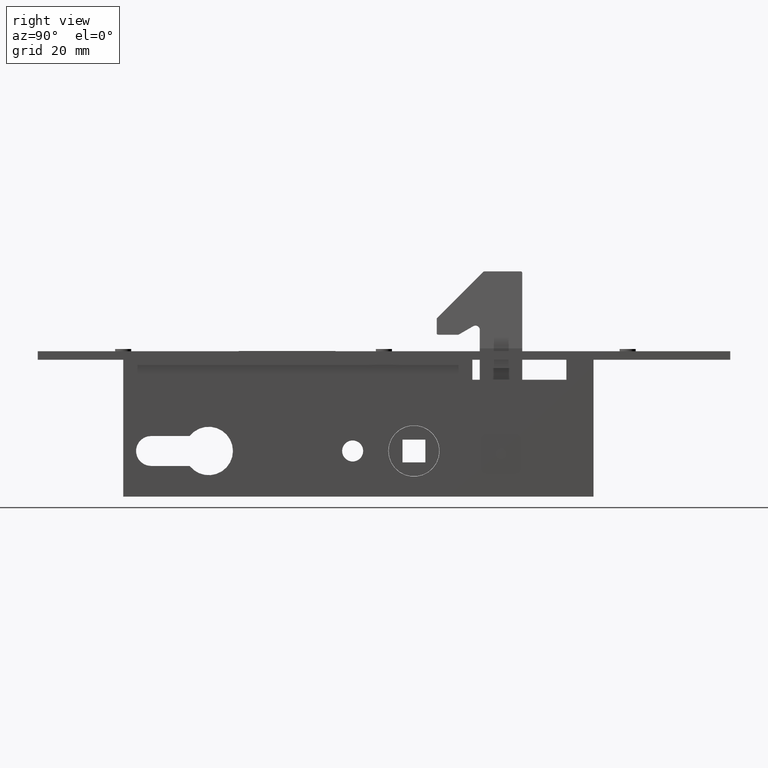
[diagram: clean part render]
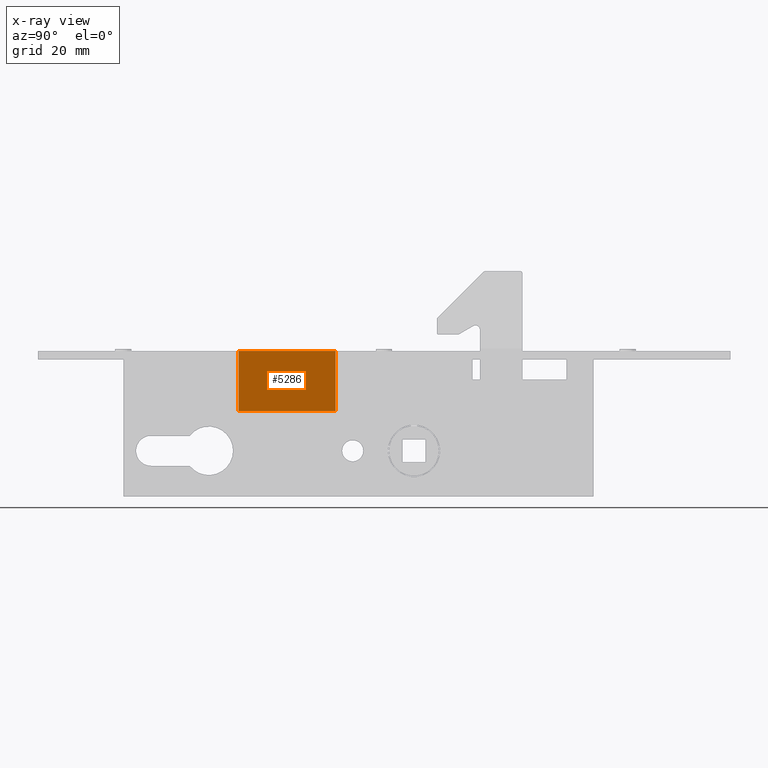
[diagram: x-ray — body ghosted, one internal face saturated and labeled with its STEP entity id]
A machine part, right view, then the same camera in x-ray: the body is ghosted and one INTERNAL B-rep face — a face not visible from any outside direction — is saturated and labeled: STEP entity #5286.
In plain terms, the highlighted planar face has unit normal (1, 0, -0).
Its self-contained STEP definition (entity closure, byte-faithful):
#49 = LINE ( 'NONE', #2280, #1914 ) ;
#641 = PLANE ( 'NONE',  #1238 ) ;
#718 = VECTOR ( 'NONE', #12581, 1000.000000000000000 ) ;
#905 = ORIENTED_EDGE ( 'NONE', *, *, #7905, .F. ) ;
#999 = VECTOR ( 'NONE', #9803, 1000.000000000000000 ) ;
#1183 = VERTEX_POINT ( 'NONE', #8689 ) ;
#1238 = AXIS2_PLACEMENT_3D ( 'NONE', #10484, #3644, #8420 ) ;
#1793 = CARTESIAN_POINT ( 'NONE',  ( -3.899999999999996803, 104.5000000000000142, -18.00000000000000355 ) ) ;
#1914 = VECTOR ( 'NONE', #10182, 1000.000000000000000 ) ;
#1984 = LINE ( 'NONE', #12452, #718 ) ;
#2280 = CARTESIAN_POINT ( 'NONE',  ( -3.900000000000005684, 104.5000000000000142, 3.100000000000000089 ) ) ;
#3202 = VERTEX_POINT ( 'NONE', #4885 ) ;
#3644 = DIRECTION ( 'NONE',  ( 1.000000000000000000, 1.275531967630005245E-16, -0.000000000000000000 ) ) ;
#4655 = EDGE_LOOP ( 'NONE', ( #5411, #905, #12520, #8312 ) ) ;
#4885 = CARTESIAN_POINT ( 'NONE',  ( -3.900000000000001688, 70.50000000000000000, 3.100000000000000089 ) ) ;
#5286 = ADVANCED_FACE ( 'NONE', ( #9382 ), #641, .F. ) ;
#5411 = ORIENTED_EDGE ( 'NONE', *, *, #10672, .T. ) ;
#6029 = VERTEX_POINT ( 'NONE', #1793 ) ;
#6070 = EDGE_CURVE ( 'NONE', #3202, #1183, #1984, .T. ) ;
#6097 = VERTEX_POINT ( 'NONE', #11612 ) ;
#6419 = LINE ( 'NONE', #7786, #999 ) ;
#7786 = CARTESIAN_POINT ( 'NONE',  ( -3.899999999999996803, 104.5000000000000142, -18.00000000000000355 ) ) ;
#7905 = EDGE_CURVE ( 'NONE', #1183, #6029, #6419, .T. ) ;
#8312 = ORIENTED_EDGE ( 'NONE', *, *, #9781, .F. ) ;
#8371 = DIRECTION ( 'NONE',  ( 1.275531967630005245E-16, -1.000000000000000000, 0.000000000000000000 ) ) ;
#8420 = DIRECTION ( 'NONE',  ( -1.275531967630005245E-16, 1.000000000000000000, 0.000000000000000000 ) ) ;
#8689 = CARTESIAN_POINT ( 'NONE',  ( -3.900000000000001688, 70.50000000000000000, -18.00000000000000355 ) ) ;
#9382 = FACE_OUTER_BOUND ( 'NONE', #4655, .T. ) ;
#9781 = EDGE_CURVE ( 'NONE', #6097, #3202, #10850, .T. ) ;
#9803 = DIRECTION ( 'NONE',  ( 1.403085164393005622E-16, 1.000000000000000000, -0.000000000000000000 ) ) ;
#10182 = DIRECTION ( 'NONE',  ( -0.000000000000000000, -0.000000000000000000, -1.000000000000000000 ) ) ;
#10427 = CARTESIAN_POINT ( 'NONE',  ( -3.900000000000005684, 104.5000000000000142, 3.100000000000000089 ) ) ;
#10484 = CARTESIAN_POINT ( 'NONE',  ( -3.900000000000005684, 104.5000000000000142, 3.100000000000000089 ) ) ;
#10672 = EDGE_CURVE ( 'NONE', #6097, #6029, #49, .T. ) ;
#10850 = LINE ( 'NONE', #10427, #12110 ) ;
#11612 = CARTESIAN_POINT ( 'NONE',  ( -3.900000000000005684, 104.5000000000000142, 3.100000000000000089 ) ) ;
#12110 = VECTOR ( 'NONE', #8371, 1000.000000000000000 ) ;
#12452 = CARTESIAN_POINT ( 'NONE',  ( -3.900000000000001688, 70.50000000000000000, 3.100000000000000089 ) ) ;
#12520 = ORIENTED_EDGE ( 'NONE', *, *, #6070, .F. ) ;
#12581 = DIRECTION ( 'NONE',  ( -0.000000000000000000, -0.000000000000000000, -1.000000000000000000 ) ) ;